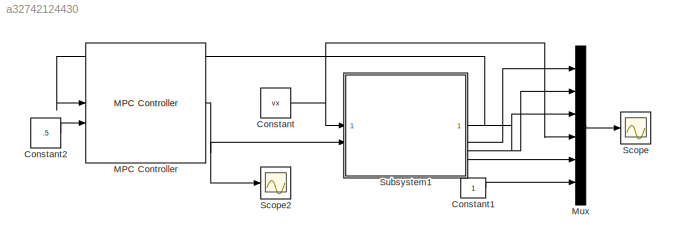
MODEL slx_a32742124430
KIND model
CONFIG AbsTol = auto
CONFIG EnableMultiTasking = off
CONFIG FixedStep = auto
CONFIG MaxStep = auto
CONFIG MinStep = auto
CONFIG RelTol = 1e-3
CONFIG SampleTimeConstraint = Unconstrained
CONFIG SolverName = VariableStepAuto
CONFIG StartTime = 0.0
CONFIG StopTime = 20
BLOCK [Constant] Constant
  Value = vx
BLOCK [Constant] Constant1
BLOCK [Constant] Constant2
  Value = .5
BLOCK [Reference] MPC Controller  REF=mpclib/MPC Controller  (lib defined in mdl_ae329e0e0455)
  SCDEnableBlockLinearizationSpecification = on
  SourceBlock = mpclib/MPC Controller
  SourceType = MPC
BLOCK [Mux] Mux
  DisplayOption = bar
  Inputs = 6
BLOCK [Scope] Scope
  Floating = off
  NumInputPorts = 1
  ScopeSpecificationString = Simulink.scopes.TimeScopeBlockCfg('CurrentConfiguration', extmgr.ConfigurationSet(extmgr.Configuration('Core','General UI',true),extmgr.Configuration('Core','Source UI',true),extmgr.Configuration('Sources','WiredSimulink',true,'DataLoggingVariableName','ScopeData1'),extmgr.Configuration('Visuals','Time Domain',true),extmgr.Configuration('Tools','Plot Navigation',true),extmgr.Configuration('Tools',...<+40ch>
BLOCK [Scope] Scope2
  Floating = off
  NumInputPorts = 1
  ScopeSpecificationString = Simulink.scopes.TimeScopeBlockCfg('CurrentConfiguration', extmgr.ConfigurationSet(extmgr.Configuration('Core','General UI',true,'FigureColor',[1 1 1]),extmgr.Configuration('Core','Source UI',true),extmgr.Configuration('Sources','WiredSimulink',true,'DataLoggingVariableName','ScopeData3'),extmgr.Configuration('Visuals','Time Domain',true,'SerializedDisplays',{struct('MinYLimReal','0.00126','MaxYLim...<+1551ch>
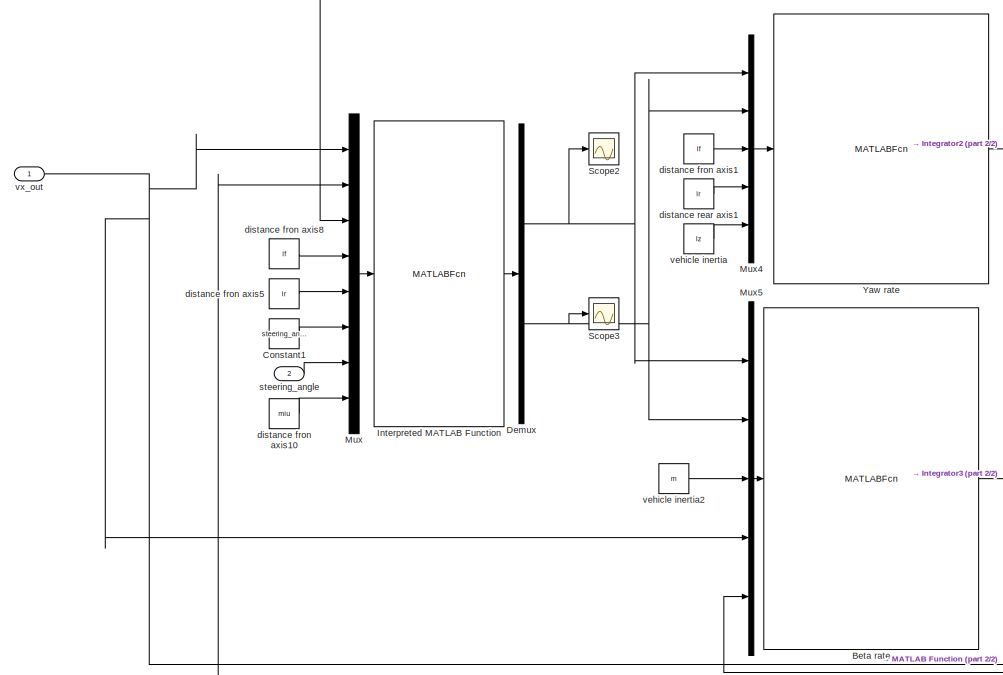
[diagram: Subsystem1 - part 1/2, left side, full height]
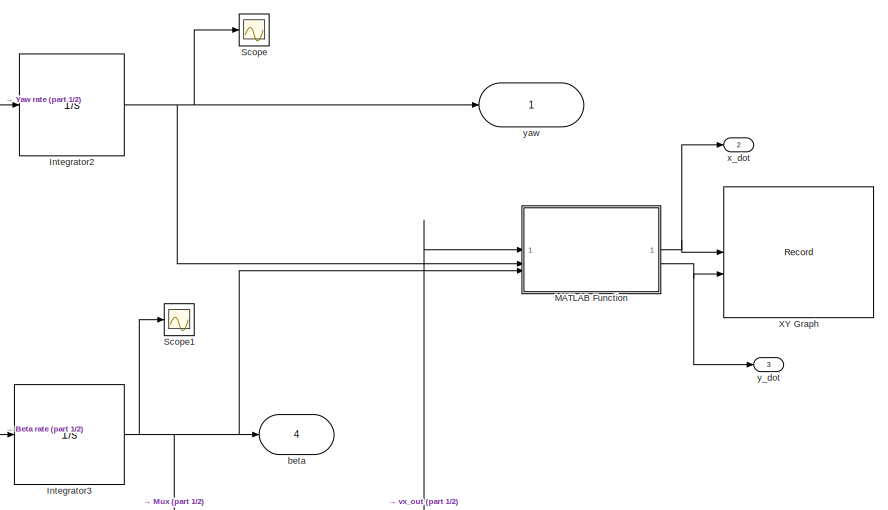
[diagram: Subsystem1 - part 2/2, middle right region]
BLOCK [SubSystem] Subsystem1
BLOCK [MATLABFcn] Subsystem1/Beta rate
  MATLABFcn = computeBetaRate
  NameLocation = top
BLOCK [Constant] Subsystem1/Constant1
  Value = steering_angle
BLOCK [Demux] Subsystem1/Demux
  Outputs = 2
BLOCK [Integrator] Subsystem1/Integrator2
BLOCK [Integrator] Subsystem1/Integrator3
BLOCK [MATLABFcn] Subsystem1/Interpreted MATLAB Function
  MATLABFcn = lateral_force
  OutputDimensions = 2
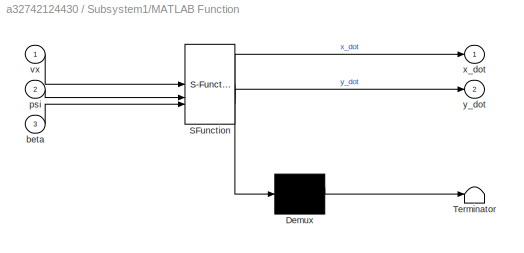
BLOCK [SubSystem] Subsystem1/MATLAB Function
  ErrorFcn = Stateflow.Translate.translate
  PermitHierarchicalResolution = ExplicitOnly
  SFBlockType = MATLAB Function
  TreatAsAtomicUnit = on
BLOCK [Demux] Subsystem1/MATLAB Function/ Demux 
  Outputs = 1
BLOCK [S-Function] Subsystem1/MATLAB Function/ SFunction 
  EnableBusSupport = on
  FunctionName = sf_sfun
  PortCounts = [3 3]
  SFcnIsStateOwnerBlock = off
  SFunctionDeploymentMode = off
  Tag = Stateflow S-Function 6
BLOCK [Terminator] Subsystem1/MATLAB Function/ Terminator 
BLOCK [Inport] Subsystem1/MATLAB Function/beta
  Port = 3
BLOCK [Inport] Subsystem1/MATLAB Function/psi
  Port = 2
BLOCK [Inport] Subsystem1/MATLAB Function/vx
BLOCK [Outport] Subsystem1/MATLAB Function/x_dot
BLOCK [Outport] Subsystem1/MATLAB Function/y_dot
  Port = 2
BLOCK [Mux] Subsystem1/Mux
  DisplayOption = bar
  Inputs = 8
BLOCK [Mux] Subsystem1/Mux4
  DisplayOption = bar
  Inputs = 5
BLOCK [Mux] Subsystem1/Mux5
  DisplayOption = bar
  Inputs = 5
BLOCK [Scope] Subsystem1/Scope
  Floating = off
  NumInputPorts = 1
  ScopeSpecificationString = Simulink.scopes.TimeScopeBlockCfg('CurrentConfiguration', extmgr.ConfigurationSet(extmgr.Configuration('Core','General UI',true),extmgr.Configuration('Core','Source UI',true),extmgr.Configuration('Sources','WiredSimulink',true,'DataLoggingVariableName','ScopeData7'),extmgr.Configuration('Visuals','Time Domain',true,'SerializedDisplays',{struct('MinYLimReal','-1.00951','MaxYLimReal','0.11217','YLab...<+1459ch>
BLOCK [Scope] Subsystem1/Scope1
  Floating = off
  NumInputPorts = 1
  ScopeSpecificationString = Simulink.scopes.TimeScopeBlockCfg('CurrentConfiguration', extmgr.ConfigurationSet(extmgr.Configuration('Core','General UI',true),extmgr.Configuration('Core','Source UI',true),extmgr.Configuration('Sources','WiredSimulink',true,'DataLoggingVariableName','ScopeData8'),extmgr.Configuration('Visuals','Time Domain',true,'SerializedDisplays',{struct('MinYLimReal','-0.0055','MaxYLimReal','0.00061','YLabe...<+1503ch>
BLOCK [Scope] Subsystem1/Scope2
  Floating = off
  NumInputPorts = 1
  ScopeSpecificationString = Simulink.scopes.TimeScopeBlockCfg('CurrentConfiguration', extmgr.ConfigurationSet(extmgr.Configuration('Core','General UI',true),extmgr.Configuration('Core','Source UI',true),extmgr.Configuration('Sources','WiredSimulink',true,'DataLoggingVariableName','ScopeData9'),extmgr.Configuration('Visuals','Time Domain',true,'SerializedDisplays',{struct('MinYLimReal','-1308.4698','MaxYLimReal','-678.35111',...<+1473ch>
BLOCK [Scope] Subsystem1/Scope3
  Floating = off
  NumInputPorts = 1
  ScopeSpecificationString = Simulink.scopes.TimeScopeBlockCfg('CurrentConfiguration', extmgr.ConfigurationSet(extmgr.Configuration('Core','General UI',true),extmgr.Configuration('Core','Source UI',true),extmgr.Configuration('Sources','WiredSimulink',true,'DataLoggingVariableName','ScopeData10'),extmgr.Configuration('Visuals','Time Domain',true,'SerializedDisplays',{struct('MinYLimReal','-991.7051','MaxYLimReal','-460.03711',...<+1468ch>
BLOCK [Record] Subsystem1/XY Graph
  CompatibilityTag = XY
  FileSettingsInternal = {"entries":[{"content":{"excelSettings":{"content":{},"type":"Streamout.ExcelSettings"}},"type":"Streamout.FileSettingStorage","uuid":""}],"packageUris":["http:\/\/schema.mathworks.com\/mf0\/streamout_blocks\/R2020a"],"version":"1.0"}
  Layout = [1 1]
  SignalsInternal = {"entries":[{"content":{"signals":[{"content":{"blockPath":[],"dimensions":[1],"domain":"","lineColor":"#a2142f","plots":[ 1 ],"port":1,"signalID":1,"signalName":"MATLAB Function:1"},"type":"RecordBlkView.Signal","uuid":""},{"content":{"blockPath":[],"dimensions":[1],"domain":"","lineColor":"#139fff","plots":[ 1 ],"port":2,"signalID":2,"signalName":"MATLAB Function:2"},"type":"RecordBlkView.Signal...<+158ch>
  VisualizationBindings = {"xyplotplugin":{"info":[{"series":[{"bindingParametersList":[{"parameter":"X-Axis","signalID":1,"signalName":"MATLAB Function:1"},{"parameter":"Y-Axis","signalID":2,"signalName":"MATLAB Function:2"}],"seriesID":0}],"subplotID":1}]}}
BLOCK [MATLABFcn] Subsystem1/Yaw rate
  MATLABFcn = computeYawRate
  NameLocation = top
BLOCK [Outport] Subsystem1/beta
  Port = 4
BLOCK [Constant] Subsystem1/distance fron axis1
  Value = lf
BLOCK [Constant] Subsystem1/distance fron axis10
  Value = miu
BLOCK [Constant] Subsystem1/distance fron axis5
  Value = lr
BLOCK [Constant] Subsystem1/distance fron axis8
  Value = lf
BLOCK [Constant] Subsystem1/distance rear axis1
  Value = lr
BLOCK [Inport] Subsystem1/steering_angle
  Port = 2
BLOCK [Constant] Subsystem1/vehicle inertia
  Value = Iz
BLOCK [Constant] Subsystem1/vehicle inertia2
  Value = m
BLOCK [Inport] Subsystem1/vx_out
BLOCK [Outport] Subsystem1/x_dot
  Port = 2
BLOCK [Outport] Subsystem1/y_dot
  Port = 3
BLOCK [Outport] Subsystem1/yaw
LINE Constant1:1 -> Mux:6
LINE Constant2:1 -> MPC Controller:2
NET Constant:1 -> Mux:4, Subsystem1:1
NET MPC Controller:1 -> Scope2:1, Subsystem1:2
LINE Mux:1 -> Scope:1
LINE Subsystem1/Beta rate:1 -> Subsystem1/Integrator3:1
LINE Subsystem1/Constant1:1 -> Subsystem1/Mux:6
NET Subsystem1/Demux:1 -> Subsystem1/Mux4:1, Subsystem1/Mux5:1, Subsystem1/Scope2:1
NET Subsystem1/Demux:2 -> Subsystem1/Mux4:2, Subsystem1/Mux5:2, Subsystem1/Scope3:1
NET Subsystem1/Integrator2:1 -> Subsystem1/MATLAB Function:2, Subsystem1/Scope:1, Subsystem1/yaw:1
NET Subsystem1/Integrator3:1 -> Subsystem1/MATLAB Function:3, Subsystem1/Mux:2, Subsystem1/Scope1:1, Subsystem1/beta:1
LINE Subsystem1/Interpreted MATLAB Function:1 -> Subsystem1/Demux:1
NET Subsystem1/MATLAB Function:1 -> Subsystem1/XY Graph:1, Subsystem1/x_dot:1
NET Subsystem1/MATLAB Function:2 -> Subsystem1/XY Graph:2, Subsystem1/y_dot:1
LINE Subsystem1/Mux4:1 -> Subsystem1/Yaw rate:1
LINE Subsystem1/Mux5:1 -> Subsystem1/Beta rate:1
LINE Subsystem1/Mux:1 -> Subsystem1/Interpreted MATLAB Function:1
NET Subsystem1/Yaw rate:1 -> Subsystem1/Integrator2:1, Subsystem1/Mux5:5, Subsystem1/Mux:3
LINE Subsystem1/distance fron axis10:1 -> Subsystem1/Mux:8
LINE Subsystem1/distance fron axis1:1 -> Subsystem1/Mux4:3
LINE Subsystem1/distance fron axis5:1 -> Subsystem1/Mux:5
LINE Subsystem1/distance fron axis8:1 -> Subsystem1/Mux:4
LINE Subsystem1/distance rear axis1:1 -> Subsystem1/Mux4:4
LINE Subsystem1/steering_angle:1 -> Subsystem1/Mux:7
LINE Subsystem1/vehicle inertia2:1 -> Subsystem1/Mux5:3
LINE Subsystem1/vehicle inertia:1 -> Subsystem1/Mux4:5
NET Subsystem1/vx_out:1 -> Subsystem1/MATLAB Function:1, Subsystem1/Mux5:4, Subsystem1/Mux:1
NET Subsystem1:1 -> MPC Controller:1, Mux:3
LINE Subsystem1:2 -> Mux:1
LINE Subsystem1:3 -> Mux:2
LINE Subsystem1:4 -> Mux:5
note: NET lines group one-source signal fan-out (src -> all destinations, sorted); 1:1 wires keep LINE
CHART Subsystem1/MATLAB Function states=1 transitions=1
  STATE_LABEL 'eML_blk_kernel()'
  STATE_LABEL 'SCRIPT:\nfunction [x_dot,y_dot] = computeVehiclePosition(vx,psi,beta) \n    vy = vx * tan(beta);\n    x_dot = vx * cos(psi) - vy * sin(psi); \n    y_dot = vx * sin(psi) + vy * cos(psi); \n\n   \nend'
CHART  states=0 transitions=0
